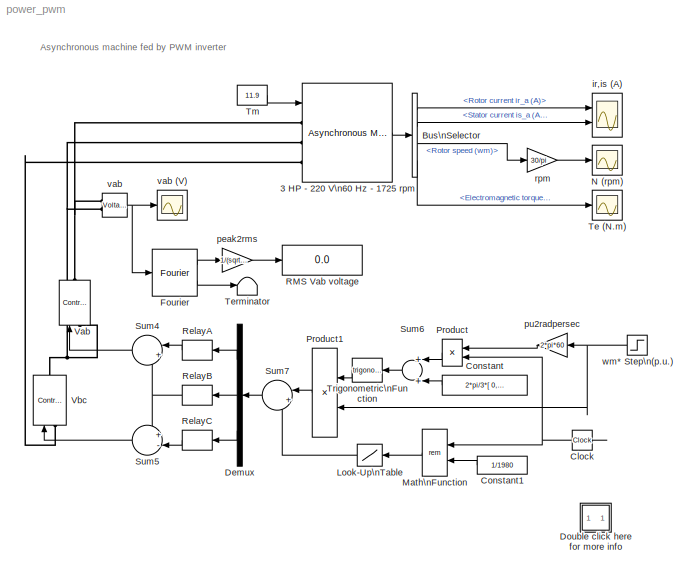
MODEL power_pwm
KIND model
BLOCK [Reference] 3 HP - 220 V\n60 Hz - 1725 rpm  REF=powerlib/Machines/Asynchronous Machine\nSI Units
  AttributesFormatString = \\n
  InitialConditions = [ 1,0   0,0,0   0,0,0 ]
  Lm = 69.31e-3
  LoadFlowParameters = 0
  Mechanical = [ 0.089  0  2 ]
  NominalParameters = [ 3*746, 220, 60 ]
  Ports = [1, 1, 0, 0, 0, 3]
  PresetModel = No
  ReferenceFrame = Stationary
  Rotor = [ 0.816  2.0e-3 ]
  RotorType = Squirrel-cage
  ShowDetailedParameters = on
  ShowPortLabels = on
  SourceBlock = powerlib/Machines/Asynchronous Machine\nSI Units
  SourceType = Asynchronous Machine
  Stator = [ 0.435  2*2.0e-3 ]
  Units = 1
BLOCK [BusSelector] Bus\nSelector
  DialogController = Simulink.DDGSource_Bus
  OutputSignals = Rotor measurements.Rotor current ir_a (A),Stator measurements.Stator current is_a (A),Mechanical.Rotor speed (wm),Mechanical.Electromagnetic torque Te (N*m)
  Ports = [1, 4]
BLOCK [Clock] Clock
  Decimation = 10
BLOCK [Constant] Constant
  Value = 2*pi/3*[ 0,-1,1 ]
BLOCK [Constant] Constant1
  Value = 1/1980
BLOCK [Demux] Demux
  Outputs = 3
  Ports = [1, 3]
BLOCK [SubSystem] Double click here for more info
  MaskDisplay = disp('?')
  MaskIconFrame = on
  MaskIconOpaque = on
  MaskIconRotate = none
  MaskIconUnits = autoscale
  MinAlgLoopOccurrences = off
  Ports = []
  RTWSystemCode = Auto
  TreatAsAtomicUnit = off
BLOCK [Reference] Fourier  REF=powerlib_extras/Measurements/Fourier
  Ports = [1, 2]
  ShowPortLabels = on
  SourceBlock = powerlib_extras/Measurements/Fourier
  SourceType = Fourier analyser
  f1 = 60
  n = 1
BLOCK [Lookup] Look-Up\nTable
  DialogController = Simulink.DDGSource
  InputValues = [0 0.25  0.75  1] / 1980
  OutputValues = [0  1  -1  0]
BLOCK [Math] Math\nFunction
  Operator = rem
  Ports = [2, 1]
BLOCK [Scope] N (rpm)
  DataFormat = Structure
  LimitDataPoints = off
  NumInputPorts = 1
  Ports = [1]
  TimeRange = 1
  YMax = 1800
  YMin = -200
BLOCK [Product] Product
  Ports = [2, 1]
  RndMeth = Floor
BLOCK [Product] Product1
  Ports = [2, 1]
  RndMeth = Floor
BLOCK [Display] RMS Vab voltage
  Decimation = 100
  Ports = [1]
BLOCK [Relay] RelayA
  OffOutputValue = -220*sqrt(2/3)
  OffSwitchValue = 0
  OnOutputValue = 220*sqrt(2/3)
  OnSwitchValue = 0
BLOCK [Relay] RelayB
  OffOutputValue = -220*sqrt(2/3)
  OffSwitchValue = 0
  OnOutputValue = 220*sqrt(2/3)
  OnSwitchValue = 0
BLOCK [Relay] RelayC
  OffOutputValue = -220*sqrt(2/3)
  OffSwitchValue = 0
  OnOutputValue = 220*sqrt(2/3)
  OnSwitchValue = 0
BLOCK [Sum] Sum4
  IconShape = round
  Inputs = |+-
  Ports = [2, 1]
BLOCK [Sum] Sum5
  IconShape = round
  Inputs = +-|
  Ports = [2, 1]
BLOCK [Sum] Sum6
  Ports = [2, 1]
BLOCK [Sum] Sum7
  IconShape = round
  Inputs = |+-
  Ports = [2, 1]
BLOCK [Scope] Te (N.m)
  DataFormat = Structure
  LimitDataPoints = off
  NumInputPorts = 1
  Ports = [1]
  YMax = 100
  YMin = -30
BLOCK [Terminator] Terminator
BLOCK [Constant] Tm
  Value = 11.9
BLOCK [Trigonometry] Trigonometric\nFunction
  Ports = [1, 1]
BLOCK [Reference] Vab  REF=powerlib/Electrical\nSources/Controlled Voltage Source
  Amplitude = 0
  AttributesFormatString = \\n
  Description = source block
  Frequency = 0
  Initialize = on
  Measurements = None
  Phase = 0
  Ports = [1, 0, 0, 0, 0, 1, 1]
  ShowPortLabels = on
  SourceBlock = powerlib/Electrical\nSources/Controlled Voltage Source
  SourceType = AC
BLOCK [Reference] Vbc  REF=powerlib/Electrical\nSources/Controlled Voltage Source
  Amplitude = 0
  AttributesFormatString = \\n
  Description = source block
  Frequency = 0
  Initialize = on
  Measurements = None
  Phase = 0
  Ports = [1, 0, 0, 0, 0, 1, 1]
  ShowPortLabels = on
  SourceBlock = powerlib/Electrical\nSources/Controlled Voltage Source
  SourceType = AC
BLOCK [Scope] ir,is (A)
  DataFormat = Structure
  LimitDataPoints = off
  NumInputPorts = 2
  Ports = [2]
  YMax = 90~90
  YMin = -90~-90
BLOCK [Gain] peak2rms
  Gain = 1/(sqrt(2))
BLOCK [Gain] pu2radpersec
  Gain = 2*pi*60
BLOCK [Gain] rpm
  Gain = 30/pi
BLOCK [Reference] vab  REF=powerlib/Measurements/Voltage Measurement
  AttributesFormatString = \\n
  OutputType = Magnitude
  PSBequivalent = 0
  PhasorSimulation = off
  Ports = [0, 1, 0, 0, 0, 2]
  ShowPortLabels = on
  SourceBlock = powerlib/Measurements/Voltage Measurement
  SourceType = Voltage Measurement
  Tag = PoWeRsYsTeMmEaSuReMeNt
BLOCK [Scope] vab (V)
  DataFormat = Structure
  LimitDataPoints = off
  NumInputPorts = 1
  Ports = [1]
  TimeRange = 0.1
  YMax = 400
  YMin = -400
BLOCK [Step] wm* Step\n(p.u.)
  SampleTime = 0
  Time = 0
ANNOTATION (root): Asynchronous machine fed by PWM inverter
ANNOTATION Double click here for more info: A three-phase motor rated 3 HP, 220 V, 1725 rpm is fed by a sinusoidal PWM inverter. The base frequency\nof the sinusoidal reference wave is 60 Hz while the triangular carrier wave's frequency is set to 1980 Hz. \nThe PWM inverter is built entirely with standard Simulink blocks. Its output goes through Controlled Voltage \nSource blocks before being applied to the Asynchronous Machine block's stat...<+442ch>
ANNOTATION Double click here for more info: Circuit Description
ANNOTATION Double click here for more info: Demonstration
ANNOTATION Double click here for more info: Louis-A. Dessaint and R. Champagne (Ecole de Technologie Superieure, Montreal)
ANNOTATION Double click here for more info: Take a look at the simulation parameters. The Maximum time step has been limited to 10 microseconds.\nThis is required due to the relatively high switching frequency (1980 Hz) of the inverter. \n\nObserve that the rotor and stator currents are quite \"noisy,\" despite the use of a smoothing reactor. The noise \nintroduced by the PWM inverter is also observed in the electromagnetic torque waveform ...<+419ch>
ANNOTATION Double click here for more info: This demonstration illustrates use of the asynchronous machine\nin an open-loop speed control on a 3 HP 220 V industrial motor
LINE 3 HP - 220 V\n60 Hz - 1725 rpm:1 -> Bus\nSelector:1
LINE Bus\nSelector:1 -> ir,is (A):1
LINE Bus\nSelector:2 -> ir,is (A):2
LINE Bus\nSelector:3 -> rpm:1
LINE Bus\nSelector:4 -> Te (N.m):1
NET Clock:1 -> Math\nFunction:1, Product:2
LINE Constant1:1 -> Math\nFunction:2
LINE Constant:1 -> Sum6:2
LINE Demux:1 -> RelayA:1
LINE Demux:2 -> RelayB:1
LINE Demux:3 -> RelayC:1
LINE Fourier:1 -> peak2rms:1
LINE Fourier:2 -> Terminator:1
LINE Look-Up\nTable:1 -> Sum7:2
LINE Math\nFunction:1 -> Look-Up\nTable:1
LINE Product1:1 -> Sum7:1
LINE Product:1 -> Sum6:1
LINE RelayA:1 -> Sum4:1
NET RelayB:1 -> Sum4:2, Sum5:1
LINE RelayC:1 -> Sum5:2
LINE Sum4:1 -> Vab:1
LINE Sum5:1 -> Vbc:1
LINE Sum6:1 -> Trigonometric\nFunction:1
LINE Sum7:1 -> Demux:1
LINE Tm:1 -> 3 HP - 220 V\n60 Hz - 1725 rpm:1
LINE Trigonometric\nFunction:1 -> Product1:1
LINE peak2rms:1 -> RMS Vab voltage:1
LINE pu2radpersec:1 -> Product:1
LINE rpm:1 -> N (rpm):1
NET vab:1 -> Fourier:1, vab (V):1
NET wm* Step\n(p.u.):1 -> Product1:2, pu2radpersec:1
PNET net1: 3 HP - 220 V\n60 Hz - 1725 rpm:LConn1 -- Vab:RConn1 -- vab:LConn1
PNET net2: 3 HP - 220 V\n60 Hz - 1725 rpm:LConn2 -- Vab:LConn1 -- Vbc:RConn1 -- vab:LConn2
PLINE 3 HP - 220 V\n60 Hz - 1725 rpm:LConn3 -- Vbc:LConn1
note: NET lines group one-source signal fan-out (src -> all destinations, sorted); 1:1 wires keep LINE; PNET lines group multi-terminal physical nets as a canonical sorted terminal list (undirected conserving connections); 2-terminal nets keep the pairwise PLINE form
